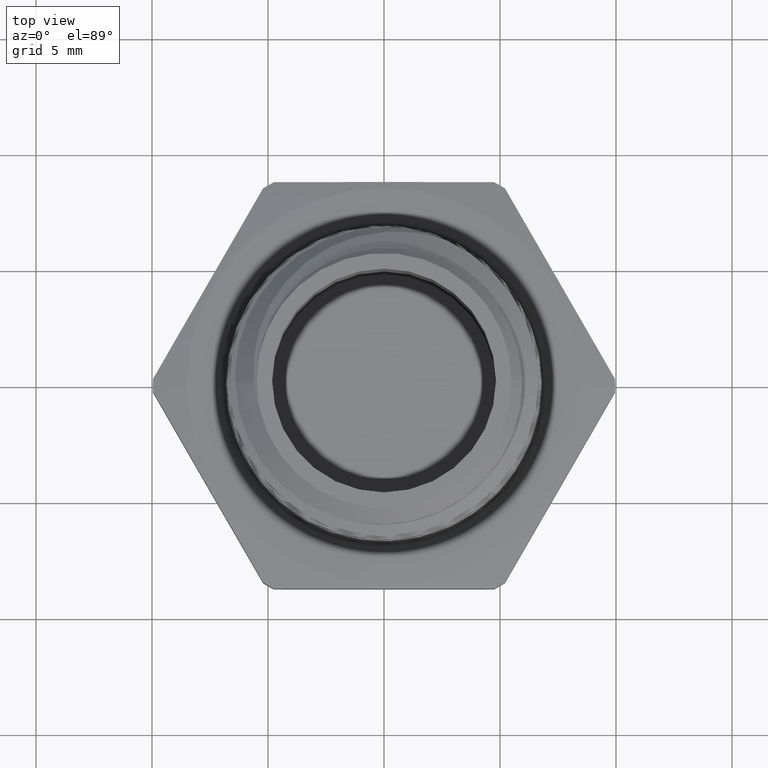
[diagram: clean part render]
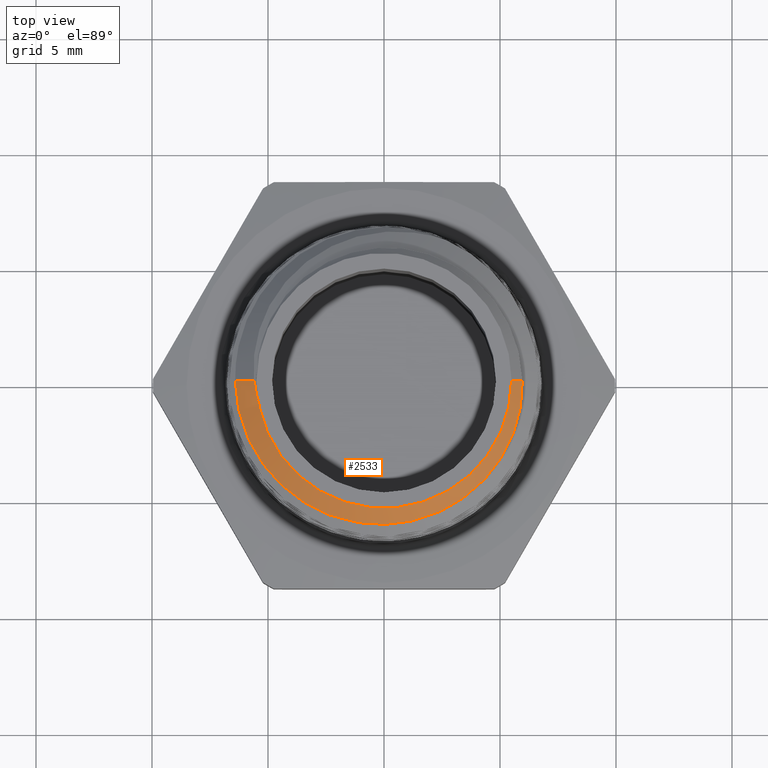
[diagram: same view with one face highlighted and labeled with its STEP entity id]
A machine part, top view. The second image highlights one B-rep face of the part: STEP entity #2533.
In plain terms, the highlighted conical surface has half-angle 45 deg.
Its self-contained STEP definition (entity closure, byte-faithful):
#913 = DIRECTION ( 'NONE',  ( -1.000000000000000000, 0.0000000000000000000, 0.0000000000000000000 ) ) ;
#914 = CARTESIAN_POINT ( 'NONE',  ( 0.0000000000000000000, 0.0000000000000000000, 0.5249437682932327500 ) ) ;
#915 = DIRECTION ( 'NONE',  ( -0.0000000000000000000, -0.0000000000000000000, -1.000000000000000000 ) ) ;
#1089 = CARTESIAN_POINT ( 'NONE',  ( -0.2165000000000000800, 0.0000000000000000000, 0.5699999999999999500 ) ) ;
#1256 = AXIS2_PLACEMENT_3D ( 'NONE', #3953, #3954, #3955 ) ;
#1296 = AXIS2_PLACEMENT_3D ( 'NONE', #914, #915, #913 ) ;
#1372 = FACE_OUTER_BOUND ( 'NONE', #2715, .T. ) ;
#1477 = ORIENTED_EDGE ( 'NONE', *, *, #1612, .F. ) ;
#1478 = ORIENTED_EDGE ( 'NONE', *, *, #1616, .T. ) ;
#1531 = ORIENTED_EDGE ( 'NONE', *, *, #1617, .T. ) ;
#1532 = ORIENTED_EDGE ( 'NONE', *, *, #1618, .T. ) ;
#1533 = ORIENTED_EDGE ( 'NONE', *, *, #1619, .T. ) ;
#1534 = ORIENTED_EDGE ( 'NONE', *, *, #1620, .T. ) ;
#1612 = EDGE_CURVE ( 'NONE', #1757, #1759, #2457, .T. ) ;
#1615 = EDGE_CURVE ( 'NONE', #4996, #1761, #2456, .T. ) ;
#1616 = EDGE_CURVE ( 'NONE', #1757, #4996, #2459, .T. ) ;
#1617 = EDGE_CURVE ( 'NONE', #1761, #1756, #2662, .T. ) ;
#1618 = EDGE_CURVE ( 'NONE', #1756, #1763, #2663, .T. ) ;
#1619 = EDGE_CURVE ( 'NONE', #1763, #1764, #2461, .T. ) ;
#1620 = EDGE_CURVE ( 'NONE', #1764, #1759, #2664, .T. ) ;
#1756 = VERTEX_POINT ( 'NONE', #2248 ) ;
#1757 = VERTEX_POINT ( 'NONE', #2313 ) ;
#1759 = VERTEX_POINT ( 'NONE', #2315 ) ;
#1761 = VERTEX_POINT ( 'NONE', #2317 ) ;
#1763 = VERTEX_POINT ( 'NONE', #2319 ) ;
#1764 = VERTEX_POINT ( 'NONE', #2320 ) ;
#2248 = CARTESIAN_POINT ( 'NONE',  ( -0.2141123668224468000, -0.03626588203955373500, 0.5693380331954585000 ) ) ;
#2313 = CARTESIAN_POINT ( 'NONE',  ( 0.2165000000000000800, 2.873286106867003800E-017, 0.5699999999999999500 ) ) ;
#2315 = CARTESIAN_POINT ( 'NONE',  ( 0.2346543190317450000, -2.694737243426980100E-016, 0.5518456809682552600 ) ) ;
#2317 = CARTESIAN_POINT ( 'NONE',  ( -0.2172128895515021700, -4.857306655882137600E-013, 0.5692871104484982200 ) ) ;
#2319 = CARTESIAN_POINT ( 'NONE',  ( -0.2206028325516575200, -2.561107494060246800E-017, 0.5658971674483425100 ) ) ;
#2320 = CARTESIAN_POINT ( 'NONE',  ( -0.2525270690005558800, 2.604860631035695000E-016, 0.5339729309994445400 ) ) ;
#2455 = VECTOR ( 'NONE', #3950, 39.37007874015748900 ) ;
#2456 = LINE ( 'NONE', #3947, #2455 ) ;
#2457 = LINE ( 'NONE', #3902, #2458 ) ;
#2458 = VECTOR ( 'NONE', #3896, 39.37007874015748900 ) ;
#2459 = CIRCLE ( 'NONE', #1256, 0.2165000000000000800 ) ;
#2461 = LINE ( 'NONE', #3963, #2463 ) ;
#2463 = VECTOR ( 'NONE', #3964, 39.37007874015748900 ) ;
#2533 = ADVANCED_FACE ( 'NONE', ( #1372 ), #4652, .T. ) ;
#2662 = B_SPLINE_CURVE_WITH_KNOTS ( 'NONE', 3,
 ( #3951, #3952, #3957, #3958 ),
 .UNSPECIFIED., .F., .F.,
 ( 4, 4 ),
 ( 0.0004323481786132546500, 0.001358316279573515900 ),
 .UNSPECIFIED. ) ;
#2663 = B_SPLINE_CURVE_WITH_KNOTS ( 'NONE', 3,
 ( #3907, #3956, #3961, #3962 ),
 .UNSPECIFIED., .F., .F.,
 ( 4, 4 ),
 ( 1.084202172485504400E-019, 0.0009365137314799973800 ),
 .UNSPECIFIED. ) ;
#2664 = B_SPLINE_CURVE_WITH_KNOTS ( 'NONE', 3,
 ( #3960, #3959, #3967, #3968, #3969, #3970, #3971, #3972, #3973, #3974, #3975, #3976, #3977, #3978, #3979, #3980, #3981, #3982, #3983, #3984, #3985, #3986, #3987, #3988, #3989, #3990, #3991, #3992, #3993, #3994, #3995, #3996, #3997, #3998, #3999, #4000, #4001, #4002, #4003, #4004, #4005, #4006, #4007, #4008 ),
 .UNSPECIFIED., .F., .F.,
 ( 4, 2, 2, 2, 2, 2, 2, 2, 2, 2, 2, 2, 2, 2, 2, 2, 2, 2, 2, 2, 2, 4 ),
 ( 0.01032012059664583000, 0.01152928277292492000, 0.01273844494920401200, 0.01334302603734355600, 0.01394760712548310400, 0.01515676930176219600, 0.01576135038990174000, 0.01636593147804128700, 0.01757509365432038300, 0.01878425583059947400, 0.01938883691873902200, 0.01999341800687856600, 0.02120258018315766100, 0.02180716127129720500, 0.02241174235943675300, 0.02362090453571584500, 0.02483006671199494000, 0.02543464780013448800, 0.02603922888827403500, 0.02724839106455313000, 0.02845755324083221900, 0.02966671541711131400 ),
 .UNSPECIFIED. ) ;
#2715 = EDGE_LOOP ( 'NONE', ( #1477, #1478, #5017, #1531, #1532, #1533, #1534 ) ) ;
#3896 = DIRECTION ( 'NONE',  ( 0.7071067811865514600, 8.659560562354980900E-017, -0.7071067811865433500 ) ) ;
#3902 = CARTESIAN_POINT ( 'NONE',  ( 0.2615562317067677800, 3.203140019567366300E-017, 0.5249437682932327500 ) ) ;
#3907 = CARTESIAN_POINT ( 'NONE',  ( -0.2141123668224468000, -0.03626588203955373500, 0.5693380331954585000 ) ) ;
#3947 = CARTESIAN_POINT ( 'NONE',  ( -0.2615562317067677800, 0.0000000000000000000, 0.5249437682932327500 ) ) ;
#3950 = DIRECTION ( 'NONE',  ( -0.7071067811865514600, 0.0000000000000000000, -0.7071067811865433500 ) ) ;
#3951 = CARTESIAN_POINT ( 'NONE',  ( -0.2172128895515021700, -4.857306655882137600E-013, 0.5692871104484982200 ) ) ;
#3952 = CARTESIAN_POINT ( 'NONE',  ( -0.2172002013055549200, -0.01214548369848100900, 0.5692997986944180500 ) ) ;
#3953 = CARTESIAN_POINT ( 'NONE',  ( 0.0000000000000000000, 0.0000000000000000000, 0.5699999999999999500 ) ) ;
#3954 = DIRECTION ( 'NONE',  ( -0.0000000000000000000, -0.0000000000000000000, -1.000000000000000000 ) ) ;
#3955 = DIRECTION ( 'NONE',  ( -1.000000000000000000, 0.0000000000000000000, 0.0000000000000000000 ) ) ;
#3956 = CARTESIAN_POINT ( 'NONE',  ( -0.2173296345981428300, -0.02427694781977489700, 0.5681680882566650900 ) ) ;
#3957 = CARTESIAN_POINT ( 'NONE',  ( -0.2161564802504854200, -0.02428668035300880800, 0.5693231427095785100 ) ) ;
#3958 = CARTESIAN_POINT ( 'NONE',  ( -0.2141123668224468000, -0.03626588203955373500, 0.5693380331954585000 ) ) ;
#3959 = CARTESIAN_POINT ( 'NONE',  ( -0.2521691240821244400, -0.01588849019190066400, 0.5343308759178756500 ) ) ;
#3960 = CARTESIAN_POINT ( 'NONE',  ( -0.2525270690005558800, 2.604860631035695000E-016, 0.5339729309994445400 ) ) ;
#3961 = CARTESIAN_POINT ( 'NONE',  ( -0.2194643961924012400, -0.01218430313011037100, 0.5670356038075987600 ) ) ;
#3962 = CARTESIAN_POINT ( 'NONE',  ( -0.2206028325516575200, -2.561107494060246800E-017, 0.5658971674483425100 ) ) ;
#3963 = CARTESIAN_POINT ( 'NONE',  ( -0.2615562317067677800, 0.0000000000000000000, 0.5249437682932327500 ) ) ;
#3964 = DIRECTION ( 'NONE',  ( -0.7071067811865514600, 0.0000000000000000000, -0.7071067811865433500 ) ) ;
#3967 = CARTESIAN_POINT ( 'NONE',  ( -0.2502658046030453200, -0.03199270423928706600, 0.5347007503213170300 ) ) ;
#3968 = CARTESIAN_POINT ( 'NONE',  ( -0.2435323935254035100, -0.06313362455187021500, 0.5354218502022447500 ) ) ;
#3969 = CARTESIAN_POINT ( 'NONE',  ( -0.2387323127198838800, -0.07825660556385771700, 0.5357749216892512300 ) ) ;
#3970 = CARTESIAN_POINT ( 'NONE',  ( -0.2293532583388974100, -0.1002602758811667700, 0.5363170611508871800 ) ) ;
#3971 = CARTESIAN_POINT ( 'NONE',  ( -0.2258391715668371100, -0.1075177088322173100, 0.5365016803537509000 ) ) ;
#3972 = CARTESIAN_POINT ( 'NONE',  ( -0.2181621357542685400, -0.1215930650059004500, 0.5368695498665748700 ) ) ;
#3973 = CARTESIAN_POINT ( 'NONE',  ( -0.2140123154586170100, -0.1283976207864791800, 0.5370522903288779100 ) ) ;
#3974 = CARTESIAN_POINT ( 'NONE',  ( -0.2006544143517097500, -0.1481309955474799700, 0.5375969174255946800 ) ) ;
#3975 = CARTESIAN_POINT ( 'NONE',  ( -0.1905472885588402300, -0.1603865965507906600, 0.5379538892426736200 ) ) ;
#3976 = CARTESIAN_POINT ( 'NONE',  ( -0.1735148527982522700, -0.1773677198309499800, 0.5385030804824186800 ) ) ;
#3977 = CARTESIAN_POINT ( 'NONE',  ( -0.1675322078903588600, -0.1827751558002960500, 0.5386890744727084200 ) ) ;
#3978 = CARTESIAN_POINT ( 'NONE',  ( -0.1551987248511123900, -0.1928843206828925700, 0.5390581645861714000 ) ) ;
#3979 = CARTESIAN_POINT ( 'NONE',  ( -0.1488178457768282400, -0.1976174849394190000, 0.5392420434156867100 ) ) ;
#3980 = CARTESIAN_POINT ( 'NONE',  ( -0.1290423752476038400, -0.2108671184607602600, 0.5397913087612437000 ) ) ;
#3981 = CARTESIAN_POINT ( 'NONE',  ( -0.1149306448035816000, -0.2184813584791077700, 0.5401551451745328900 ) ) ;
#3982 = CARTESIAN_POINT ( 'NONE',  ( -0.08532293338714383400, -0.2308671528323308900, 0.5408940644043166400 ) ) ;
#3983 = CARTESIAN_POINT ( 'NONE',  ( -0.07013236559280447400, -0.2355278259864131100, 0.5412660750159789000 ) ) ;
#3984 = CARTESIAN_POINT ( 'NONE',  ( -0.04678523541435934700, -0.2402955872936622700, 0.5418210866523889300 ) ) ;
#3985 = CARTESIAN_POINT ( 'NONE',  ( -0.03890860863402313700, -0.2415114984261554100, 0.5420057337466337400 ) ) ;
#3986 = CARTESIAN_POINT ( 'NONE',  ( -0.02296100164821480000, -0.2431732195255952000, 0.5423767015952345400 ) ) ;
#3987 = CARTESIAN_POINT ( 'NONE',  ( -0.01490753605805737700, -0.2436118846524345500, 0.5425626196500362700 ) ) ;
#3988 = CARTESIAN_POINT ( 'NONE',  ( 0.009012081878765192500, -0.2437367723346564600, 0.5431182545157006200 ) ) ;
#3989 = CARTESIAN_POINT ( 'NONE',  ( 0.02481293644692227400, -0.2422618777380784200, 0.5434930802518392900 ) ) ;
#3990 = CARTESIAN_POINT ( 'NONE',  ( 0.04829667599305149900, -0.2377191382362929300, 0.5440553185733270100 ) ) ;
#3991 = CARTESIAN_POINT ( 'NONE',  ( 0.05613021409604190100, -0.2358000513858520600, 0.5442438857208505800 ) ) ;
#3992 = CARTESIAN_POINT ( 'NONE',  ( 0.07149451832432035500, -0.2312131804233308100, 0.5446182919493649500 ) ) ;
#3993 = CARTESIAN_POINT ( 'NONE',  ( 0.07900841420437296200, -0.2285559456354168100, 0.5448037142443172800 ) ) ;
#3994 = CARTESIAN_POINT ( 'NONE',  ( 0.1010558102872831700, -0.2195159333436050900, 0.5453624857568882800 ) ) ;
#3995 = CARTESIAN_POINT ( 'NONE',  ( 0.1150985871736548400, -0.2120727313691714900, 0.5457413596393164700 ) ) ;
#3996 = CARTESIAN_POINT ( 'NONE',  ( 0.1418333567848162900, -0.1942667348323428300, 0.5465032081301054400 ) ) ;
#3997 = CARTESIAN_POINT ( 'NONE',  ( 0.1541994794507111900, -0.1841027313316739000, 0.5468763775688918500 ) ) ;
#3998 = CARTESIAN_POINT ( 'NONE',  ( 0.1710076159693975400, -0.1672389315627982600, 0.5474403604330258000 ) ) ;
#3999 = CARTESIAN_POINT ( 'NONE',  ( 0.1763336805532609600, -0.1613344132906645000, 0.5476305822278363400 ) ) ;
#4000 = CARTESIAN_POINT ( 'NONE',  ( 0.1864229062317592200, -0.1489489848466137600, 0.5480140696136516200 ) ) ;
#4001 = CARTESIAN_POINT ( 'NONE',  ( 0.1912073762849307000, -0.1424314718447514900, 0.5482081095571548200 ) ) ;
#4002 = CARTESIAN_POINT ( 'NONE',  ( 0.2044148450415577400, -0.1223932259609356400, 0.5487823288704188900 ) ) ;
#4003 = CARTESIAN_POINT ( 'NONE',  ( 0.2117806513671481900, -0.1083262006136646900, 0.5491556229393435000 ) ) ;
#4004 = CARTESIAN_POINT ( 'NONE',  ( 0.2236460997770351700, -0.07878268649148853500, 0.5499180207079978900 ) ) ;
#4005 = CARTESIAN_POINT ( 'NONE',  ( 0.2281366614896510000, -0.06317402169432030600, 0.5503127145457027400 ) ) ;
#4006 = CARTESIAN_POINT ( 'NONE',  ( 0.2337939486859796100, -0.03186870895587821900, 0.5510804478589582700 ) ) ;
#4007 = CARTESIAN_POINT ( 'NONE',  ( 0.2350429670530910500, -0.01603036847718759100, 0.5514570329469095100 ) ) ;
#4008 = CARTESIAN_POINT ( 'NONE',  ( 0.2346543190317450000, -2.694737243426980100E-016, 0.5518456809682552600 ) ) ;
#4652 = CONICAL_SURFACE ( 'NONE', #1296, 0.2615562317067677800, 0.7853981633974539400 ) ;
#4996 = VERTEX_POINT ( 'NONE', #1089 ) ;
#5017 = ORIENTED_EDGE ( 'NONE', *, *, #1615, .T. ) ;